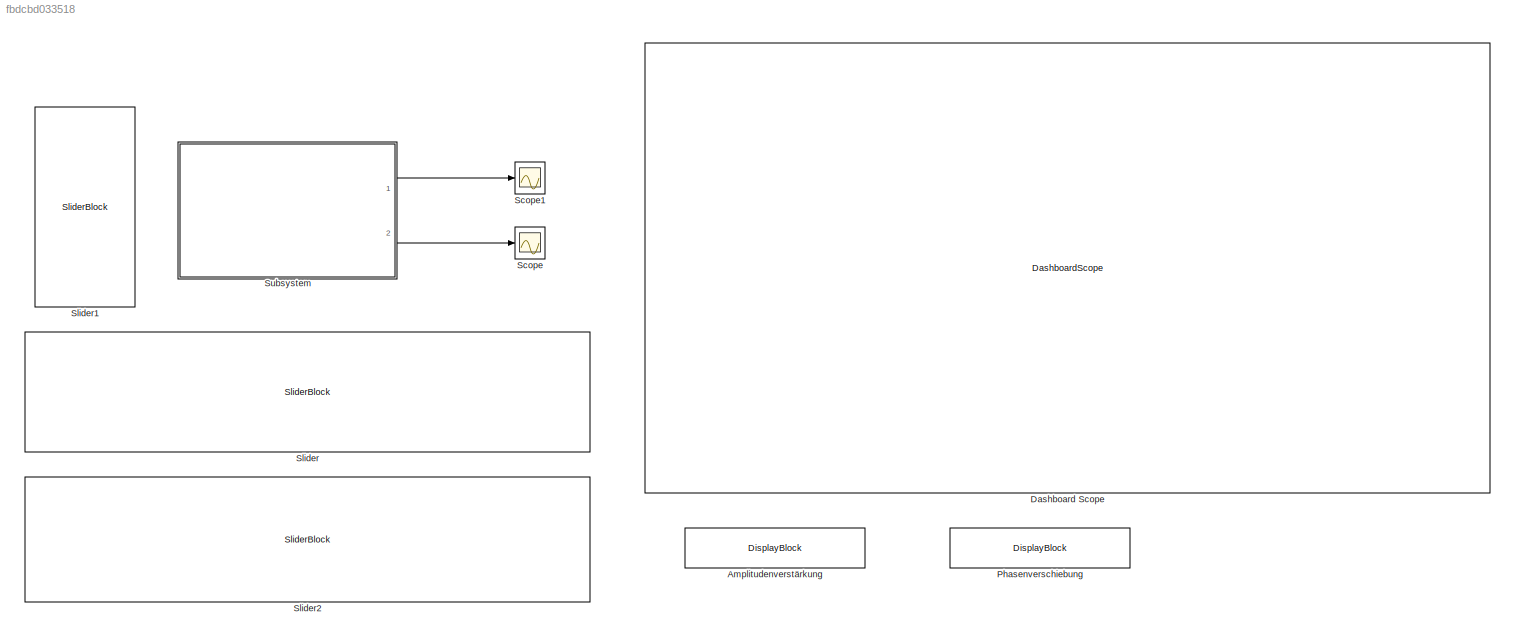
MODEL slx_fbdcbd033518
KIND model
CONFIG AbsTol = auto
CONFIG EnableMultiTasking = off
CONFIG FixedStep = auto
CONFIG MaxStep = auto
CONFIG MinStep = auto
CONFIG RelTol = 1e-3
CONFIG SampleTimeConstraint = Unconstrained
CONFIG SolverName = VariableStepAuto
CONFIG StartTime = 0.0
CONFIG StopTime = 20
BLOCK [DisplayBlock] Amplitudenverstärkung
  Format = Custom
  FormatString = A = %0.3g
  LabelPosition = Hide
  Transparency = 1
BLOCK [DashboardScope] Dashboard Scope
BLOCK [DisplayBlock] Phasenverschiebung
  Format = Custom
  FormatString = phi = %0.3g
  LabelPosition = Hide
  Transparency = 1
BLOCK [Scope] Scope
  Floating = off
  NumInputPorts = 1
  Ports = [1]
  ScopeSpecificationString = Simulink.scopes.TimeScopeBlockCfg('CurrentConfiguration', extmgr.ConfigurationSet(extmgr.Configuration('Core','General UI',true),extmgr.Configuration('Core','Source UI',true),extmgr.Configuration('Sources','WiredSimulink',true,'DataLoggingSaveFormat','Array','DataLoggingLimitDataPoints',true,'DataLoggingDecimation','1'),extmgr.Configuration('Visuals','Time Domain',true,'DisplayPropertyDefaults',st...<+829ch>
BLOCK [Scope] Scope1
  Floating = off
  NumInputPorts = 1
  Ports = [1]
  ScopeSpecificationString = Simulink.scopes.TimeScopeBlockCfg('CurrentConfiguration', extmgr.ConfigurationSet(extmgr.Configuration('Core','General UI',true),extmgr.Configuration('Core','Source UI',true),extmgr.Configuration('Sources','WiredSimulink',true,'DataLoggingVariableName','ScopeData1','DataLoggingSaveFormat','Array','DataLoggingLimitDataPoints',true,'DataLoggingDecimation','1'),extmgr.Configuration('Visuals','Time Do...<+868ch>
BLOCK [SliderBlock] Slider
  ScaleMax = 3
BLOCK [SliderBlock] Slider1
  NameLocation = left
  ScaleMax = 10
  ScaleMin = 0.01
  ScaleType = Log
BLOCK [SliderBlock] Slider2
  ScaleMax = 0
  ScaleMin = -3.14
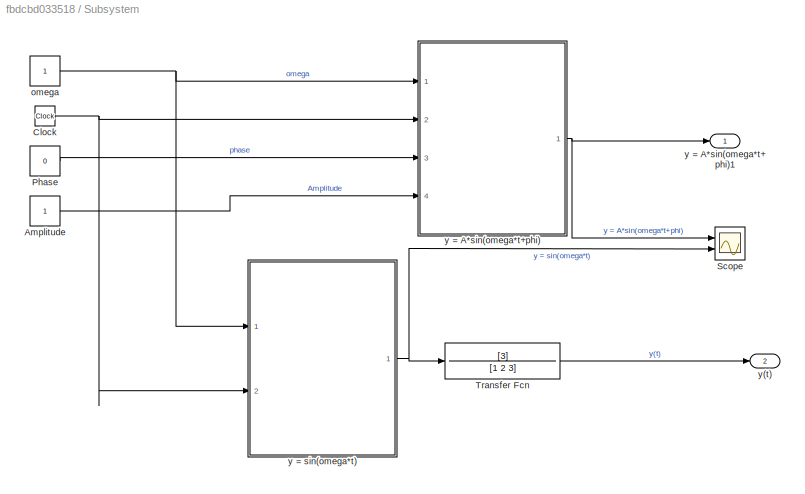
BLOCK [SubSystem] Subsystem
  Ports = [0, 2]
  RequestExecContextInheritance = off
BLOCK [Constant] Subsystem/Amplitude
BLOCK [Clock] Subsystem/Clock
BLOCK [Constant] Subsystem/Phase
  Value = 0
BLOCK [Scope] Subsystem/Scope
  Floating = off
  NumInputPorts = 2
  Ports = [2]
  ScopeSpecificationString = Simulink.scopes.TimeScopeBlockCfg('CurrentConfiguration', extmgr.ConfigurationSet(extmgr.Configuration('Core','General UI',true),extmgr.Configuration('Core','Source UI',true),extmgr.Configuration('Sources','WiredSimulink',true,'DataLoggingVariableName','ScopeData1'),extmgr.Configuration('Visuals','Time Domain',true,'SerializedDisplays',{struct('MinYLimReal','-1.24972','MaxYLimReal','1.24905','YLab...<+1428ch>
BLOCK [TransferFcn] Subsystem/Transfer Fcn
  Denominator = [1 2 3]
  Numerator = [3]
BLOCK [Constant] Subsystem/omega
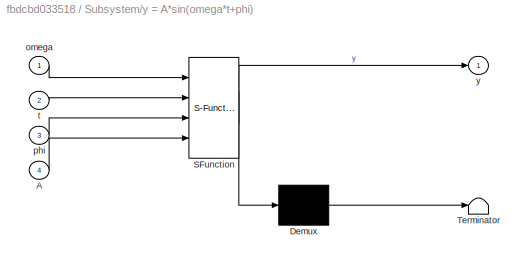
BLOCK [SubSystem] Subsystem/y = A*sin(omega*t+phi)
  ErrorFcn = Stateflow.Translate.translate
  PermitHierarchicalResolution = ExplicitOnly
  Ports = [4, 1]
  RequestExecContextInheritance = off
  SFBlockType = MATLAB Function
  TreatAsAtomicUnit = on
BLOCK [Demux] Subsystem/y = A*sin(omega*t+phi)/ Demux 
  Outputs = 1
  Ports = [1, 1]
BLOCK [S-Function] Subsystem/y = A*sin(omega*t+phi)/ SFunction 
  EnableBusSupport = on
  FunctionName = sf_sfun
  PortCounts = [4 2]
  Ports = [4, 2]
  SFcnIsStateOwnerBlock = off
  SFunctionDeploymentMode = off
  Tag = Stateflow S-Function 2
BLOCK [Terminator] Subsystem/y = A*sin(omega*t+phi)/ Terminator 
BLOCK [Inport] Subsystem/y = A*sin(omega*t+phi)/A
  Port = 4
BLOCK [Inport] Subsystem/y = A*sin(omega*t+phi)/omega
BLOCK [Inport] Subsystem/y = A*sin(omega*t+phi)/phi
  Port = 3
BLOCK [Inport] Subsystem/y = A*sin(omega*t+phi)/t
  Port = 2
BLOCK [Outport] Subsystem/y = A*sin(omega*t+phi)/y
BLOCK [Outport] Subsystem/y = A*sin(omega*t+phi)1
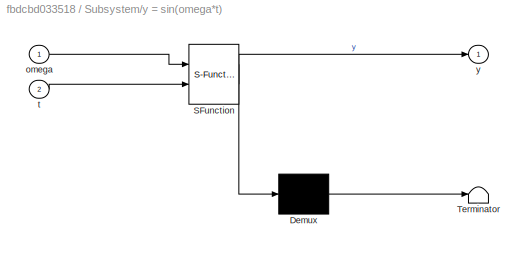
BLOCK [SubSystem] Subsystem/y = sin(omega*t)
  ErrorFcn = Stateflow.Translate.translate
  PermitHierarchicalResolution = ExplicitOnly
  Ports = [2, 1]
  RequestExecContextInheritance = off
  SFBlockType = MATLAB Function
  TreatAsAtomicUnit = on
BLOCK [Demux] Subsystem/y = sin(omega*t)/ Demux 
  Outputs = 1
  Ports = [1, 1]
BLOCK [S-Function] Subsystem/y = sin(omega*t)/ SFunction 
  EnableBusSupport = on
  FunctionName = sf_sfun
  PortCounts = [2 2]
  Ports = [2, 2]
  SFcnIsStateOwnerBlock = off
  SFunctionDeploymentMode = off
  Tag = Stateflow S-Function 1
BLOCK [Terminator] Subsystem/y = sin(omega*t)/ Terminator 
BLOCK [Inport] Subsystem/y = sin(omega*t)/omega
BLOCK [Inport] Subsystem/y = sin(omega*t)/t
  Port = 2
BLOCK [Outport] Subsystem/y = sin(omega*t)/y
BLOCK [Outport] Subsystem/y(t)
  Port = 2
LINE Subsystem/Amplitude:1 -> Subsystem/y = A*sin(omega*t+phi):4
NET Subsystem/Clock:1 -> Subsystem/y = A*sin(omega*t+phi):2, Subsystem/y = sin(omega*t):2
LINE Subsystem/Phase:1 -> Subsystem/y = A*sin(omega*t+phi):3
LINE Subsystem/Transfer Fcn:1 -> Subsystem/y(t):1
NET Subsystem/omega:1 -> Subsystem/y = A*sin(omega*t+phi):1, Subsystem/y = sin(omega*t):1
NET Subsystem/y = A*sin(omega*t+phi):1 -> Subsystem/Scope:1, Subsystem/y = A*sin(omega*t+phi)1:1
NET Subsystem/y = sin(omega*t):1 -> Subsystem/Scope:2, Subsystem/Transfer Fcn:1
LINE Subsystem:1 -> Scope1:1
LINE Subsystem:2 -> Scope:1
note: NET lines group one-source signal fan-out (src -> all destinations, sorted); 1:1 wires keep LINE
CHART Subsystem/y = sin(omega*t) states=1 transitions=1
  STATE_LABEL 'eML_blk_kernel()'
  STATE_LABEL 'SCRIPT:\nfunction y = fcn(omega, t)\n\n\ny = sin(omega*t);\n'
CHART Subsystem/y = A*sin(omega*t+phi) states=1 transitions=1
  STATE_LABEL 'eML_blk_kernel()'
  STATE_LABEL 'SCRIPT:\nfunction y = fcn(omega, t, phi,A)\n\n\ny = A*sin(omega*t+phi);\n'
CHART  states=0 transitions=0
CHART  states=0 transitions=0
